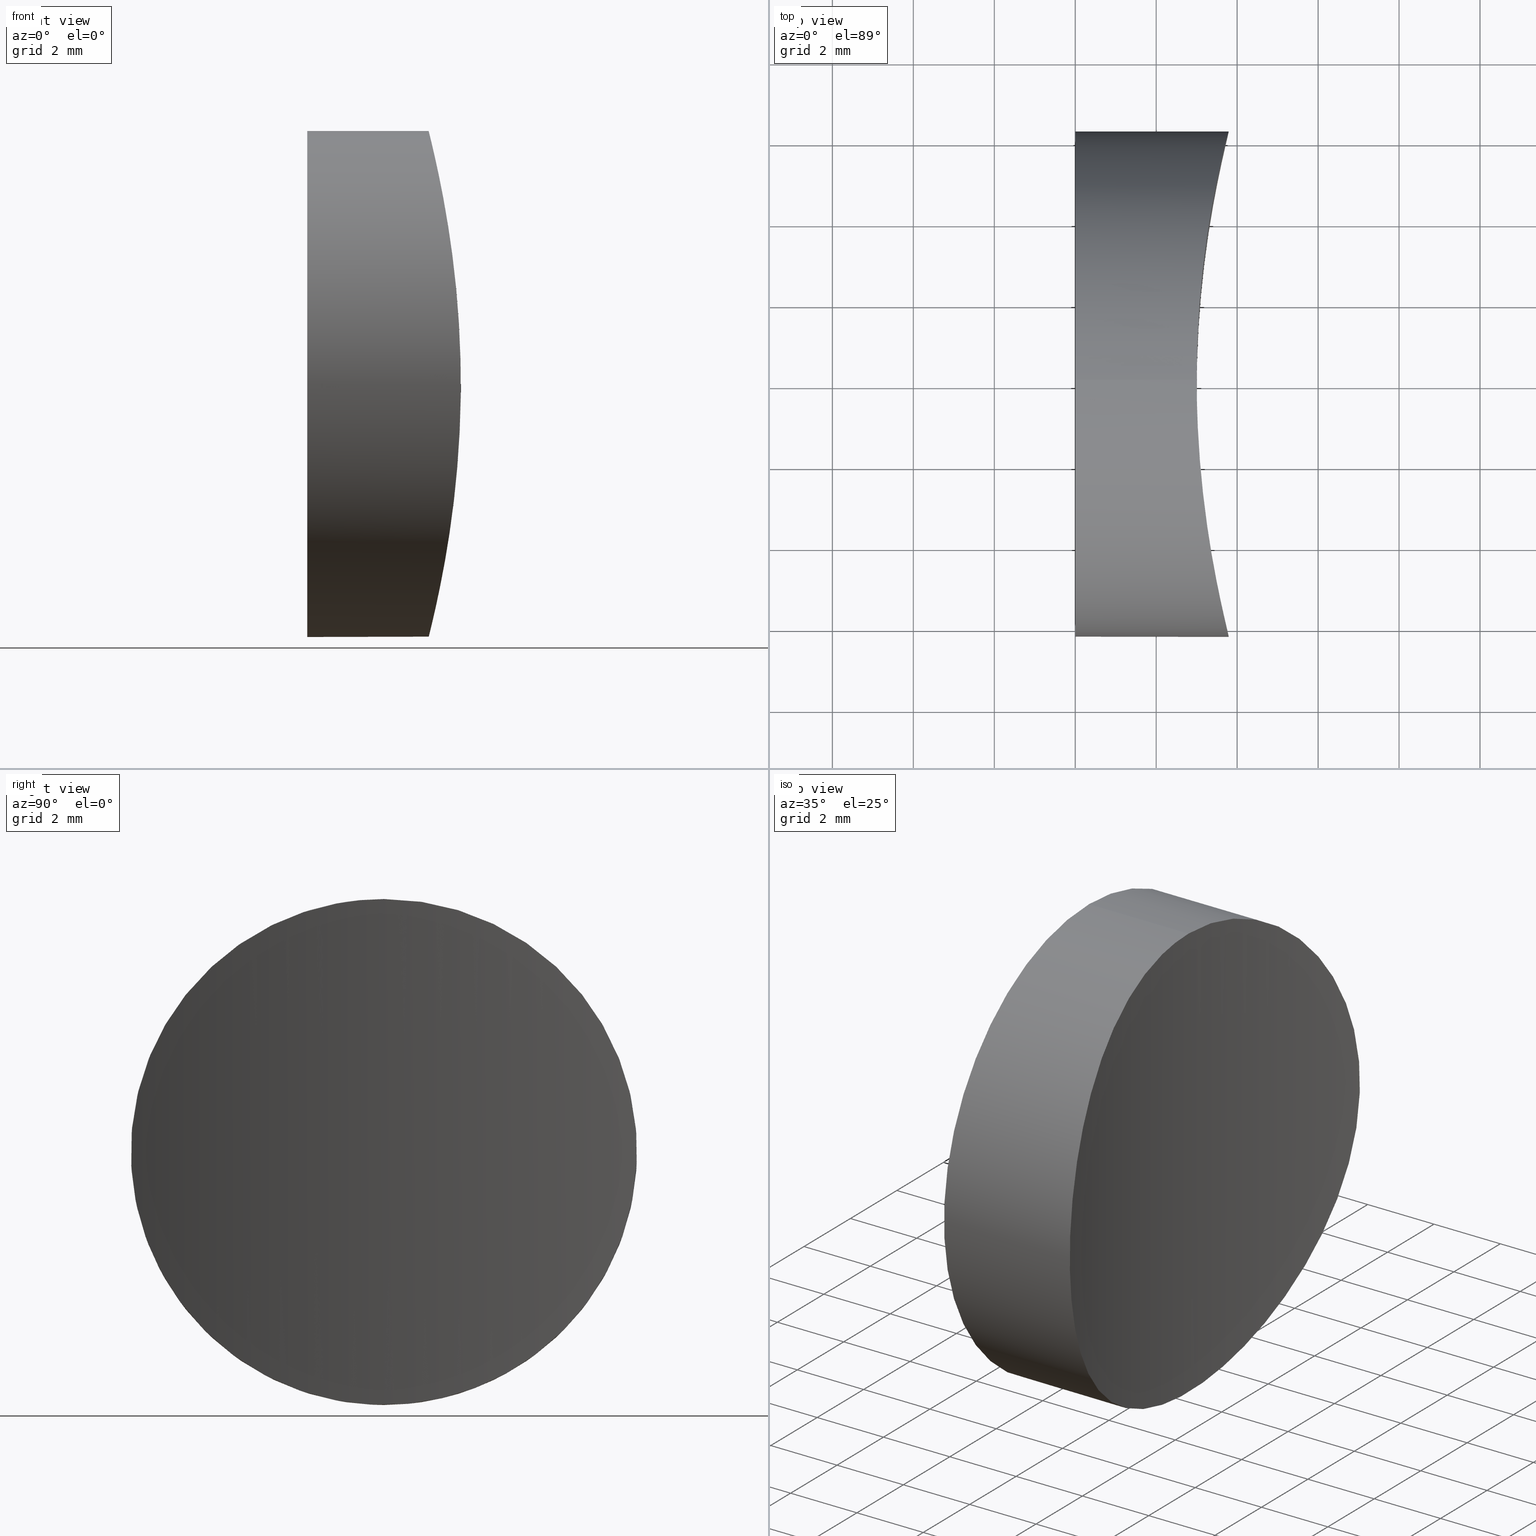
[diagram: canonical four-view strip — front | top / right | iso, engineering-drawing reading convention]
A machine part, canonical four-view strip (front | top / right | iso — engineering-drawing reading convention). The complete STEP part file that produces these views, byte-faithful:
ISO-10303-21;
HEADER;
FILE_DESCRIPTION (( 'STEP AP203' ),
    '1' );
FILE_NAME ('280000.STEP',
    '2022-07-05T09:49:29',
    ( '' ),
    ( '' ),
    'SwSTEP 2.0',
    'SolidWorks 2020',
    '' );
FILE_SCHEMA (( 'CONFIG_CONTROL_DESIGN' ));
ENDSEC;

DATA;
#1 = SHAPE_DEFINITION_REPRESENTATION ( #156, #25 ) ;
#2 = LOCAL_TIME ( 17, 49, 29.00000000000000000, #187 ) ;
#3 = CARTESIAN_POINT ( 'NONE',  ( 3.636443860856869215, 5.605971677192931324, -2.770802750281159632 ) ) ;
#4 = CARTESIAN_POINT ( 'NONE',  ( 3.638257470871796961, 5.615268903889822028, 2.774296461127400804 ) ) ;
#5 = CARTESIAN_POINT ( 'NONE',  ( 3.290310181420371016, -3.814261838486400435, -4.967947760793492762 ) ) ;
#6 = CARTESIAN_POINT ( 'NONE',  ( 3.267087856802576074, -3.648647074055821449, 5.078570842315659029 ) ) ;
#7 = UNCERTAINTY_MEASURE_WITH_UNIT (LENGTH_MEASURE( 1.000000000000000082E-05 ), #150, 'distance_accuracy_value', 'NONE');
#8 = CARTESIAN_POINT ( 'NONE',  ( 3.195824250715872950, -3.128267085458035002, -5.414659088025882028 ) ) ;
#9 = CARTESIAN_POINT ( 'NONE',  ( 3.791120220880266789, -6.239437850428284804, -0.4172545291450944771 ) ) ;
#10 = CARTESIAN_POINT ( 'NONE',  ( 3.742450159484837169, -6.047984141188499585, -1.628126743173117230 ) ) ;
#11 = LOCAL_TIME ( 17, 49, 29.00000000000000000, #84 ) ;
#12 = DATE_TIME_ROLE ( 'creation_date' ) ;
#13 = PERSON_AND_ORGANIZATION_ROLE ( 'design_supplier' ) ;
#14 = PRODUCT_DEFINITION ( 'δ֪', '', #36, #91 ) ;
#15 = APPROVAL_PERSON_ORGANIZATION ( #118, #54, #168 ) ;
#16 = COORDINATED_UNIVERSAL_TIME_OFFSET ( 8, 0, .AHEAD. ) ;
#17 = CARTESIAN_POINT ( 'NONE',  ( 3.010302738378706433, 0.8220863831981034542, 6.209143830352492621 ) ) ;
#18 = CARTESIAN_POINT ( 'NONE',  ( 3.783327126832763732, 6.209643203257611432, 0.8199643017245361598 ) ) ;
#19 = APPROVAL_DATE_TIME ( #182, #132 ) ;
#20 = CC_DESIGN_PERSON_AND_ORGANIZATION_ASSIGNMENT ( #130, #99, ( #36 ) ) ;
#21 = CARTESIAN_POINT ( 'NONE',  ( 3.710585398867075391, 5.918456543866597919, 2.019001746349436743 ) ) ;
#22 = AXIS2_PLACEMENT_3D ( 'NONE', #76, #92, #198 ) ;
#23 = CARTESIAN_POINT ( 'NONE',  ( 3.593336963274444518, -5.419240689061587624, -3.139951033257240454 ) ) ;
#24 = CYLINDRICAL_SURFACE ( 'NONE', #22, 24.99999999999999289 ) ;
#25 = ADVANCED_BREP_SHAPE_REPRESENTATION ( '280000', ( #192, #195 ), #52 ) ;
#26 = CARTESIAN_POINT ( 'NONE',  ( 3.521352149896014527, -5.080269873654426505, -3.646175879623436700 ) ) ;
#27 = CARTESIAN_POINT ( 'NONE',  ( 3.000000000000005329, -0.4146683050572130824, 6.249999999999996447 ) ) ;
#28 = CARTESIAN_POINT ( 'NONE',  ( 3.218881206174867504, -3.305373262139159607, -5.308357295770720796 ) ) ;
#29 = CC_DESIGN_PERSON_AND_ORGANIZATION_ASSIGNMENT ( #77, #170, ( #30 ) ) ;
#30 = SECURITY_CLASSIFICATION ( '', '', #34 ) ;
#31 = APPROVAL_DATE_TIME ( #100, #190 ) ;
#32 = APPROVAL_DATE_TIME ( #117, #54 ) ;
#33 = ORIENTED_EDGE ( 'NONE', *, *, #203, .F. ) ;
#34 = SECURITY_CLASSIFICATION_LEVEL ( 'unclassified' ) ;
#35 = PLANE ( 'NONE',  #64 ) ;
#36 = PRODUCT_DEFINITION_FORMATION_WITH_SPECIFIED_SOURCE ( '�κ�', '', #218, .NOT_KNOWN. ) ;
#37 = CARTESIAN_POINT ( 'NONE',  ( 3.195790536118004344, 3.141257592830961176, -5.418510785771966098 ) ) ;
#38 = CARTESIAN_POINT ( 'NONE',  ( 3.097149667423018560, 2.210002486382717013, 5.849811725649334271 ) ) ;
#39 = CARTESIAN_POINT ( 'NONE',  ( 3.419802402532336139, 4.564592878777822271, -4.274212540184350040 ) ) ;
#40 = CARTESIAN_POINT ( 'NONE',  ( 3.342785699842190983, -4.128824374257444418, 4.696471886130423989 ) ) ;
#41 = CARTESIAN_POINT ( 'NONE',  ( 3.368504906436697421, -4.279094405918300481, 4.559931882621710564 ) ) ;
#42 = CARTESIAN_POINT ( 'NONE',  ( 3.793825888569768878, -6.249890791017548963, -0.2094397779807070370 ) ) ;
#43 = FACE_OUTER_BOUND ( 'NONE', #183, .T. ) ;
#44 = LOCAL_TIME ( 17, 49, 29.00000000000000000, #50 ) ;
#45 = VERTEX_POINT ( 'NONE', #181 ) ;
#46 = COORDINATED_UNIVERSAL_TIME_OFFSET ( 8, 0, .AHEAD. ) ;
#47 = CALENDAR_DATE ( 2022, 5, 7 ) ;
#48 = APPROVAL_ROLE ( '' ) ;
#49 = APPLICATION_CONTEXT ( 'configuration controlled 3d designs of mechanical parts and assemblies' ) ;
#50 = COORDINATED_UNIVERSAL_TIME_OFFSET ( 8, 0, .AHEAD. ) ;
#51 = DATE_AND_TIME ( #202, #44 ) ;
#52 =( GEOMETRIC_REPRESENTATION_CONTEXT ( 3 ) GLOBAL_UNCERTAINTY_ASSIGNED_CONTEXT ( ( #7 ) ) GLOBAL_UNIT_ASSIGNED_CONTEXT ( ( #150, #169, #154 ) ) REPRESENTATION_CONTEXT ( 'NONE', 'WORKASPACE' ) );
#53 = CARTESIAN_POINT ( 'NONE',  ( 3.368108647392228150, 4.276818667062673995, 4.562072867199454151 ) ) ;
#54 = APPROVAL ( #217, 'δָ��' ) ;
#55 = CARTESIAN_POINT ( 'NONE',  ( 3.151821672476587288, 2.777102178492088402, 5.614074843788896985 ) ) ;
#56 = ADVANCED_FACE ( 'NONE', ( #103 ), #35, .F. ) ;
#57 = CARTESIAN_POINT ( 'NONE',  ( 3.341812397379325894, 4.130408269425956291, -4.708485051318627157 ) ) ;
#58 = CARTESIAN_POINT ( 'NONE',  ( 3.772851669099297034, -6.168224449695478562, -1.028158234006162353 ) ) ;
#59 = CARTESIAN_POINT ( 'NONE',  ( 3.002550009386038887, 0.4117923553586035901, -6.239823242448420793 ) ) ;
#60 = APPROVAL_PERSON_ORGANIZATION ( #167, #132, #200 ) ;
#61 = CARTESIAN_POINT ( 'NONE',  ( 3.132956578253453639, -2.581843500393789181, -5.695446560645406997 ) ) ;
#62 = CARTESIAN_POINT ( 'NONE',  ( 3.793909812878222709, -6.250215828514417815, 0.4090254001575806542 ) ) ;
#63 = VERTEX_POINT ( 'NONE', #129 ) ;
#64 = AXIS2_PLACEMENT_3D ( 'NONE', #101, #171, #119 ) ;
#65 = MECHANICAL_CONTEXT ( 'NONE', #201, 'mechanical' ) ;
#66 = DIRECTION ( 'NONE',  ( 1.000000000000000000, 0.000000000000000000, 0.000000000000000000 ) ) ;
#67 = ORIENTED_EDGE ( 'NONE', *, *, #69, .F. ) ;
#68 = CARTESIAN_POINT ( 'NONE',  ( 3.195037825947132148, 3.135456324396921790, 5.421974617920334083 ) ) ;
#69 = EDGE_CURVE ( 'NONE', #63, #63, #116, .T. ) ;
#70 = CARTESIAN_POINT ( 'NONE',  ( 3.592841768783759715, 5.412985614893277564, -3.131110515362468316 ) ) ;
#71 = CARTESIAN_POINT ( 'NONE',  ( 3.521804666914022608, 5.082447490060788553, -3.643139869598919223 ) ) ;
#72 = CARTESIAN_POINT ( 'NONE',  ( 3.637478843100485637, -5.611951351562949775, -2.781725142499088754 ) ) ;
#73 = CARTESIAN_POINT ( 'NONE',  ( 3.445211070170543177, -4.698924554706207068, -4.126079223833704290 ) ) ;
#74 = DIRECTION ( 'NONE',  ( -1.000000000000000000, -0.000000000000000000, -0.000000000000000000 ) ) ;
#75 = CARTESIAN_POINT ( 'NONE',  ( 3.445811451595262920, -4.702041184388626505, 4.122480967822371056 ) ) ;
#76 = CARTESIAN_POINT ( 'NONE',  ( 27.99999999999999645, 0.000000000000000000, -6.250000000000000000 ) ) ;
#77 = PERSON_AND_ORGANIZATION ( #94, #111 ) ;
#78 = LOCAL_TIME ( 17, 49, 29.00000000000000000, #16 ) ;
#79 = PERSON_AND_ORGANIZATION ( #94, #111 ) ;
#80 = EDGE_LOOP ( 'NONE', ( #83 ) ) ;
#81 = PERSON_AND_ORGANIZATION_ROLE ( 'design_owner' ) ;
#82 = CC_DESIGN_PERSON_AND_ORGANIZATION_ASSIGNMENT ( #185, #13, ( #36 ) ) ;
#83 = ORIENTED_EDGE ( 'NONE', *, *, #203, .T. ) ;
#84 = COORDINATED_UNIVERSAL_TIME_OFFSET ( 8, 0, .AHEAD. ) ;
#85 = ADVANCED_FACE ( 'NONE', ( #177 ), #24, .F. ) ;
#86 = CARTESIAN_POINT ( 'NONE',  ( 3.793920483158855994, 6.250257154356509304, -0.4054737514530414311 ) ) ;
#87 = CARTESIAN_POINT ( 'NONE',  ( 3.783236862547155965, 6.209284121509559107, -0.8215004172457196496 ) ) ;
#88 = CARTESIAN_POINT ( 'NONE',  ( 3.569771788786396005, 5.308226521349697080, -3.305521410719668207 ) ) ;
#89 = CARTESIAN_POINT ( 'NONE',  ( 3.793787046439740518, 6.249740356055814239, 0.4133629647047514233 ) ) ;
#90 = FACE_OUTER_BOUND ( 'NONE', #80, .T. ) ;
#91 = DESIGN_CONTEXT ( 'detailed design', #49, 'design' ) ;
#92 = DIRECTION ( 'NONE',  ( -0.000000000000000000, -0.000000000000000000, 1.000000000000000000 ) ) ;
#93 = CARTESIAN_POINT ( 'NONE',  ( 2.999956895731858975, -0.4061785270021773253, -6.250172417087084042 ) ) ;
#94 = PERSON ( 'δָ��', 'δָ��', 'δָ��', ('δָ��'), ('δָ��'), ('δָ��') ) ;
#95 = DIRECTION ( 'NONE',  ( 1.000000000000000000, 0.000000000000000000, 0.000000000000000000 ) ) ;
#96 = DATE_TIME_ROLE ( 'classification_date' ) ;
#97 = CARTESIAN_POINT ( 'NONE',  ( 0.000000000000000000, 0.000000000000000000, 0.000000000000000000 ) ) ;
#98 = CC_DESIGN_APPROVAL ( #54, ( #14 ) ) ;
#99 = PERSON_AND_ORGANIZATION_ROLE ( 'creator' ) ;
#100 = DATE_AND_TIME ( #47, #2 ) ;
#101 = CARTESIAN_POINT ( 'NONE',  ( 0.000000000000000000, 0.000000000000000000, 0.000000000000000000 ) ) ;
#102 = CLOSED_SHELL ( 'NONE', ( #114, #56, #85 ) ) ;
#103 = FACE_OUTER_BOUND ( 'NONE', #186, .T. ) ;
#104 = CARTESIAN_POINT ( 'NONE',  ( 3.050019578541420806, 1.631198462655937265, -6.047325199887478853 ) ) ;
#105 = CARTESIAN_POINT ( 'NONE',  ( 3.693818278012755307, 5.849441518415613217, 2.210859640940527449 ) ) ;
#106 = CARTESIAN_POINT ( 'NONE',  ( 3.593975532393448358, 5.422223648116685446, 3.135385352001712089 ) ) ;
#107 = CARTESIAN_POINT ( 'NONE',  ( 3.341402026639819223, -4.127877953837899128, -4.710540198006571977 ) ) ;
#108 = CARTESIAN_POINT ( 'NONE',  ( 3.152106053089233306, -2.779383614136762937, 5.612803493114009612 ) ) ;
#109 = CARTESIAN_POINT ( 'NONE',  ( 3.712809057801257584, -5.929433812838456497, 2.017643235511750621 ) ) ;
#110 = CYLINDRICAL_SURFACE ( 'NONE', #151, 6.250000000000000000 ) ;
#111 = ORGANIZATION ( 'δָ��', 'δָ��', '' ) ;
#112 = CARTESIAN_POINT ( 'NONE',  ( 3.743106100711719897, -6.050608101007867390, 1.618685035580492704 ) ) ;
#113 = CALENDAR_DATE ( 2022, 5, 7 ) ;
#114 = ADVANCED_FACE ( 'NONE', ( #43, #90 ), #110, .T. ) ;
#115 = DIRECTION ( 'NONE',  ( 0.000000000000000000, 0.000000000000000000, 1.000000000000000000 ) ) ;
#116 = B_SPLINE_CURVE_WITH_KNOTS ( 'NONE', 3,
 ( #131, #123, #17, #140, #159, #141, #38, #55, #68, #160, #121, #143, #53, #207, #193, #106, #4, #105, #21, #175, #174, #18, #89, #86, #87, #158, #122, #209, #3, #70, #88, #71, #208, #191, #39, #57, #138, #37, #120, #189, #104, #173, #213, #59, #126, #93, #128, #210, #162, #61, #149, #8, #28, #5, #107, #165, #73, #176, #26, #23, #72, #145, #10, #58, #144, #9, #42, #62, #211, #112, #109, #196, #148, #180, #178, #75, #125, #41, #40, #163, #6, #127, #108, #199, #194, #197, #27, #214 ),
 .UNSPECIFIED., .T., .F.,
 ( 4, 2, 2, 2, 2, 2, 2, 2, 2, 2, 2, 2, 2, 2, 2, 2, 2, 2, 2, 2, 2, 2, 2, 2, 2, 2, 2, 2, 2, 2, 2, 2, 2, 2, 2, 2, 2, 2, 2, 2, 2, 2, 2, 4 ),
 ( 0.000000000000000000, 0.001225986451029700223, 0.001838979676544550768, 0.002451972902059401313, 0.003677959353089101970, 0.004290952578603953599, 0.004903945804118805228, 0.006129932255148509354, 0.007355918706178215215, 0.007968911931693066844, 0.008581905157207919341, 0.009807891608237626069, 0.01103387805926733106, 0.01225986451029703432, 0.01287285773581188682, 0.01348585096132673931, 0.01409884418684159181, 0.01471183741235644431, 0.01593782386338615104, 0.01716381031441585603, 0.01838979676544556449, 0.01900278999096041699, 0.01961578321647526948, 0.02084176966750497448, 0.02206775611853467947, 0.02268074934404953197, 0.02329374256956438446, 0.02451972902059408599, 0.02513272224610894542, 0.02574571547162379792, 0.02697170192265350291, 0.02819768837368320791, 0.02881068159919806387, 0.02942367482471291637, 0.03064966127574262136, 0.03187564772677232983, 0.03310163417780203482, 0.03371462740331688385, 0.03432762062883173981, 0.03494061385434659578, 0.03555360707986144481, 0.03677959353089114980, 0.03800557998192085479, 0.03923156643295056673 ),
 .UNSPECIFIED. ) ;
#117 = DATE_AND_TIME ( #133, #11 ) ;
#118 = PERSON_AND_ORGANIZATION ( #94, #111 ) ;
#119 = DIRECTION ( 'NONE',  ( 0.000000000000000000, 0.000000000000000000, -1.000000000000000000 ) ) ;
#120 = CARTESIAN_POINT ( 'NONE',  ( 3.151622785858400722, 2.775199420405761508, -5.614943193848010772 ) ) ;
#121 = CARTESIAN_POINT ( 'NONE',  ( 3.291441730246351671, 3.809571991819664660, 4.958993097895111113 ) ) ;
#122 = CARTESIAN_POINT ( 'NONE',  ( 3.713082752555930455, 5.930581289695680880, -2.014788014960703144 ) ) ;
#123 = CARTESIAN_POINT ( 'NONE',  ( 3.000000000000006217, 0.4146683050572104734, 6.250000000000000888 ) ) ;
#124 = CC_DESIGN_DATE_AND_TIME_ASSIGNMENT ( #51, #12, ( #14 ) ) ;
#125 = CARTESIAN_POINT ( 'NONE',  ( 3.420017150272522954, -4.565702857840999052, 4.272936358385626576 ) ) ;
#126 = CARTESIAN_POINT ( 'NONE',  ( 3.000021761924191122, 0.2070559067049850266, -6.249912952295980872 ) ) ;
#127 = CARTESIAN_POINT ( 'NONE',  ( 3.195313157610454091, -3.137799366999404427, 5.420769707172379270 ) ) ;
#128 = CARTESIAN_POINT ( 'NONE',  ( 3.009936723793188218, -0.8137106746709632521, -6.210628268600698831 ) ) ;
#129 = CARTESIAN_POINT ( 'NONE',  ( 3.000000000000006217, 0.000000000000000000, 6.250000000000000000 ) ) ;
#130 = PERSON_AND_ORGANIZATION ( #94, #111 ) ;
#131 = CARTESIAN_POINT ( 'NONE',  ( 3.000000000000005773, 9.215718466126787689E-16, 6.249999999999998224 ) ) ;
#132 = APPROVAL ( #216, 'δָ��' ) ;
#133 = CALENDAR_DATE ( 2022, 5, 7 ) ;
#134 = CC_DESIGN_DATE_AND_TIME_ASSIGNMENT ( #188, #96, ( #30 ) ) ;
#135 = APPLICATION_PROTOCOL_DEFINITION ( 'international standard', 'config_control_design', 1994, #201 ) ;
#136 = ORIENTED_EDGE ( 'NONE', *, *, #69, .T. ) ;
#137 = PERSON_AND_ORGANIZATION ( #94, #111 ) ;
#138 = CARTESIAN_POINT ( 'NONE',  ( 3.290707378225714574, 3.816695497964462724, -4.965943402402320572 ) ) ;
#139 = CC_DESIGN_APPROVAL ( #190, ( #36 ) ) ;
#140 = CARTESIAN_POINT ( 'NONE',  ( 3.039717954345317441, 1.422855935644490533, 6.089308603467416425 ) ) ;
#141 = CARTESIAN_POINT ( 'NONE',  ( 3.080545522569166028, 2.014870804215961542, 5.919888866863395549 ) ) ;
#142 = CC_DESIGN_PERSON_AND_ORGANIZATION_ASSIGNMENT ( #79, #204, ( #14 ) ) ;
#143 = CARTESIAN_POINT ( 'NONE',  ( 3.342319588214313075, 4.126074071185441561, 4.698932226040230198 ) ) ;
#144 = CARTESIAN_POINT ( 'NONE',  ( 3.780626787194011129, -6.198580968902890120, -0.8260024233645691938 ) ) ;
#145 = CARTESIAN_POINT ( 'NONE',  ( 3.712531750348012416, -5.928348936662912294, -2.021551786595754407 ) ) ;
#146 = AXIS2_PLACEMENT_3D ( 'NONE', #215, #95, #166 ) ;
#147 = DIRECTION ( 'NONE',  ( 0.000000000000000000, 0.000000000000000000, 1.000000000000000000 ) ) ;
#148 = CARTESIAN_POINT ( 'NONE',  ( 3.594593213904142104, -5.424968785102142199, 3.130528928760716312 ) ) ;
#149 = CARTESIAN_POINT ( 'NONE',  ( 3.152868278166800042, -2.766448039852775764, -5.608150607847123936 ) ) ;
#150 =( LENGTH_UNIT ( ) NAMED_UNIT ( * ) SI_UNIT ( .MILLI., .METRE. ) );
#151 = AXIS2_PLACEMENT_3D ( 'NONE', #164, #74, #147 ) ;
#152 = PRODUCT_RELATED_PRODUCT_CATEGORY ( 'detail', '', ( #218 ) ) ;
#153 = APPROVAL_STATUS ( 'not_yet_approved' ) ;
#154 =( NAMED_UNIT ( * ) SI_UNIT ( $, .STERADIAN. ) SOLID_ANGLE_UNIT ( ) );
#155 = EDGE_LOOP ( 'NONE', ( #67 ) ) ;
#156 = PRODUCT_DEFINITION_SHAPE ( 'NONE', 'NONE',  #14 ) ;
#157 = CC_DESIGN_SECURITY_CLASSIFICATION ( #30, ( #36 ) ) ;
#158 = CARTESIAN_POINT ( 'NONE',  ( 3.742725125707084377, 6.049086032627005949, -1.624386163152860219 ) ) ;
#159 = CARTESIAN_POINT ( 'NONE',  ( 3.051852512448020249, 1.621373723045781423, 6.039531091393745221 ) ) ;
#160 = CARTESIAN_POINT ( 'NONE',  ( 3.266417655999905190, 3.644065468287478016, 5.081819127313367268 ) ) ;
#161 = APPROVAL_PERSON_ORGANIZATION ( #137, #190, #48 ) ;
#162 = CARTESIAN_POINT ( 'NONE',  ( 3.078636818511728546, -2.017105543737544249, -5.929577958691178985 ) ) ;
#163 = CARTESIAN_POINT ( 'NONE',  ( 3.292142365038253082, -3.814076408231961590, 4.955487871324495863 ) ) ;
#164 = CARTESIAN_POINT ( 'NONE',  ( 10.00000000000000000, 0.000000000000000000, 0.000000000000000000 ) ) ;
#165 = CARTESIAN_POINT ( 'NONE',  ( 3.419031102794180210, -4.560419462943706037, -4.278620181987229820 ) ) ;
#166 = DIRECTION ( 'NONE',  ( 0.000000000000000000, 0.000000000000000000, -1.000000000000000000 ) ) ;
#167 = PERSON_AND_ORGANIZATION ( #94, #111 ) ;
#168 = APPROVAL_ROLE ( '' ) ;
#169 =( NAMED_UNIT ( * ) PLANE_ANGLE_UNIT ( ) SI_UNIT ( $, .RADIAN. ) );
#170 = PERSON_AND_ORGANIZATION_ROLE ( 'classification_officer' ) ;
#171 = DIRECTION ( 'NONE',  ( 1.000000000000000000, 0.000000000000000000, 0.000000000000000000 ) ) ;
#172 = CC_DESIGN_PERSON_AND_ORGANIZATION_ASSIGNMENT ( #184, #81, ( #218 ) ) ;
#173 = CARTESIAN_POINT ( 'NONE',  ( 3.020314732165112481, 1.027573249869271343, -6.168363303226747085 ) ) ;
#174 = CARTESIAN_POINT ( 'NONE',  ( 3.752749751934279843, 6.088725962557029803, 1.425585386727320936 ) ) ;
#175 = CARTESIAN_POINT ( 'NONE',  ( 3.740026571891691631, 6.038002881321395066, 1.626965616893595978 ) ) ;
#176 = CARTESIAN_POINT ( 'NONE',  ( 3.496390398819158474, -4.958897848535927189, -3.809692095164487480 ) ) ;
#177 = FACE_OUTER_BOUND ( 'NONE', #155, .T. ) ;
#178 = CARTESIAN_POINT ( 'NONE',  ( 3.496746244854820329, -4.960637255561090697, 3.807376872399662826 ) ) ;
#179 = CIRCLE ( 'NONE', #146, 6.250000000000000000 ) ;
#180 = CARTESIAN_POINT ( 'NONE',  ( 3.522016609998305459, -5.083490025301285797, 3.641789201195946291 ) ) ;
#181 = CARTESIAN_POINT ( 'NONE',  ( 0.000000000000000000, 0.000000000000000000, -6.250000000000000000 ) ) ;
#182 = DATE_AND_TIME ( #113, #206 ) ;
#183 = EDGE_LOOP ( 'NONE', ( #136 ) ) ;
#184 = PERSON_AND_ORGANIZATION ( #94, #111 ) ;
#185 = PERSON_AND_ORGANIZATION ( #94, #111 ) ;
#186 = EDGE_LOOP ( 'NONE', ( #33 ) ) ;
#187 = COORDINATED_UNIVERSAL_TIME_OFFSET ( 8, 0, .AHEAD. ) ;
#188 = DATE_AND_TIME ( #219, #78 ) ;
#189 = CARTESIAN_POINT ( 'NONE',  ( 3.078929617202505575, 2.020849567618869802, -5.928362836248738610 ) ) ;
#190 = APPROVAL ( #153, 'δָ��' ) ;
#191 = CARTESIAN_POINT ( 'NONE',  ( 3.445975845410717220, 4.702898635035096753, -4.121502694304307823 ) ) ;
#192 = MANIFOLD_SOLID_BREP ( '�г�-����1', #102 ) ;
#193 = CARTESIAN_POINT ( 'NONE',  ( 3.496940248154309483, 4.965340109306252359, 3.817924592583946009 ) ) ;
#194 = CARTESIAN_POINT ( 'NONE',  ( 3.049861965881575543, -1.628871928142315850, 6.047974023765315899 ) ) ;
#195 = AXIS2_PLACEMENT_3D ( 'NONE', #97, #115, #66 ) ;
#196 = CARTESIAN_POINT ( 'NONE',  ( 3.638583787784513746, -5.616692028129821601, 2.771613289725187723 ) ) ;
#197 = CARTESIAN_POINT ( 'NONE',  ( 3.010307656479210170, -0.8233396966205921430, 6.209132410763904986 ) ) ;
#198 = DIRECTION ( 'NONE',  ( 1.000000000000000000, 0.000000000000000000, 0.000000000000000000 ) ) ;
#199 = CARTESIAN_POINT ( 'NONE',  ( 3.079451821123319277, -2.027087895416177510, 5.926166635448414155 ) ) ;
#200 = APPROVAL_ROLE ( '' ) ;
#201 = APPLICATION_CONTEXT ( 'configuration controlled 3d designs of mechanical parts and assemblies' ) ;
#202 = CALENDAR_DATE ( 2022, 5, 7 ) ;
#203 = EDGE_CURVE ( 'NONE', #45, #45, #179, .T. ) ;
#204 = PERSON_AND_ORGANIZATION_ROLE ( 'creator' ) ;
#205 = APPLICATION_PROTOCOL_DEFINITION ( 'international standard', 'config_control_design', 1994, #49 ) ;
#206 = LOCAL_TIME ( 17, 49, 29.00000000000000000, #46 ) ;
#207 = CARTESIAN_POINT ( 'NONE',  ( 3.445431336927642363, 4.707245037270009647, 4.131475666803524405 ) ) ;
#208 = CARTESIAN_POINT ( 'NONE',  ( 3.496906393113038636, 4.961427359914106994, -3.806347144293111384 ) ) ;
#209 = CARTESIAN_POINT ( 'NONE',  ( 3.657073862647733264, 5.694601217458763465, -2.583831122354285803 ) ) ;
#210 = CARTESIAN_POINT ( 'NONE',  ( 3.049625478922588506, -1.626099280137865088, -6.048952775807619808 ) ) ;
#211 = CARTESIAN_POINT ( 'NONE',  ( 3.783428592235738019, -6.210026512501015894, 0.8158249508496052682 ) ) ;
#212 = CC_DESIGN_APPROVAL ( #132, ( #30 ) ) ;
#213 = CARTESIAN_POINT ( 'NONE',  ( 3.012673032935915263, 0.8219306650865724206, -6.199144862214597929 ) ) ;
#214 = CARTESIAN_POINT ( 'NONE',  ( 3.000000000000005773, 9.215718466126787689E-16, 6.249999999999998224 ) ) ;
#215 = CARTESIAN_POINT ( 'NONE',  ( 0.000000000000000000, 0.000000000000000000, 0.000000000000000000 ) ) ;
#216 = APPROVAL_STATUS ( 'not_yet_approved' ) ;
#217 = APPROVAL_STATUS ( 'not_yet_approved' ) ;
#218 = PRODUCT ( '280000', '280000', '', ( #65 ) ) ;
#219 = CALENDAR_DATE ( 2022, 5, 7 ) ;
ENDSEC;
END-ISO-10303-21;
